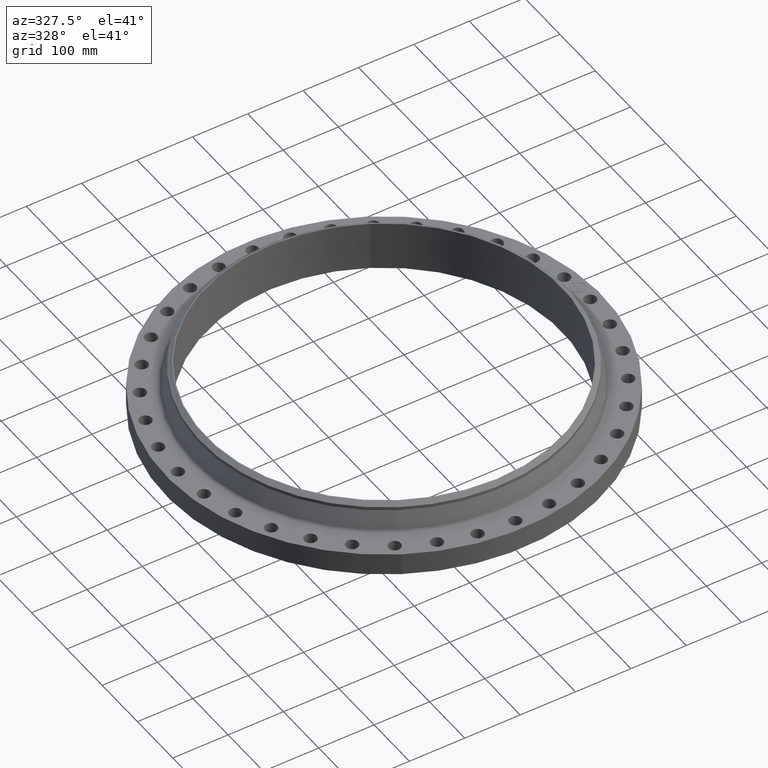
[diagram: clean part render]
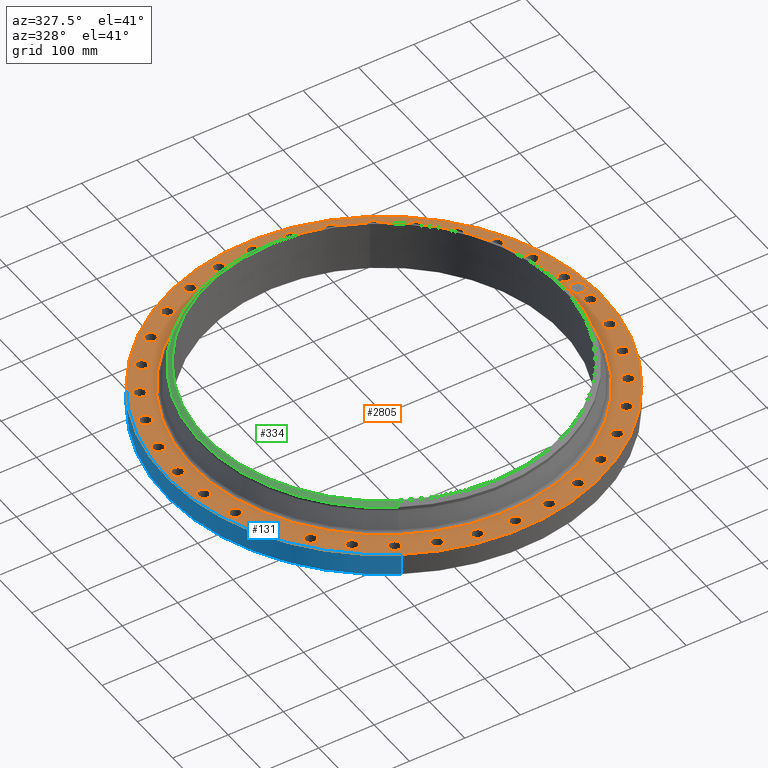
[diagram: same view with three faces highlighted in distinct colors, each labeled with its STEP entity id]
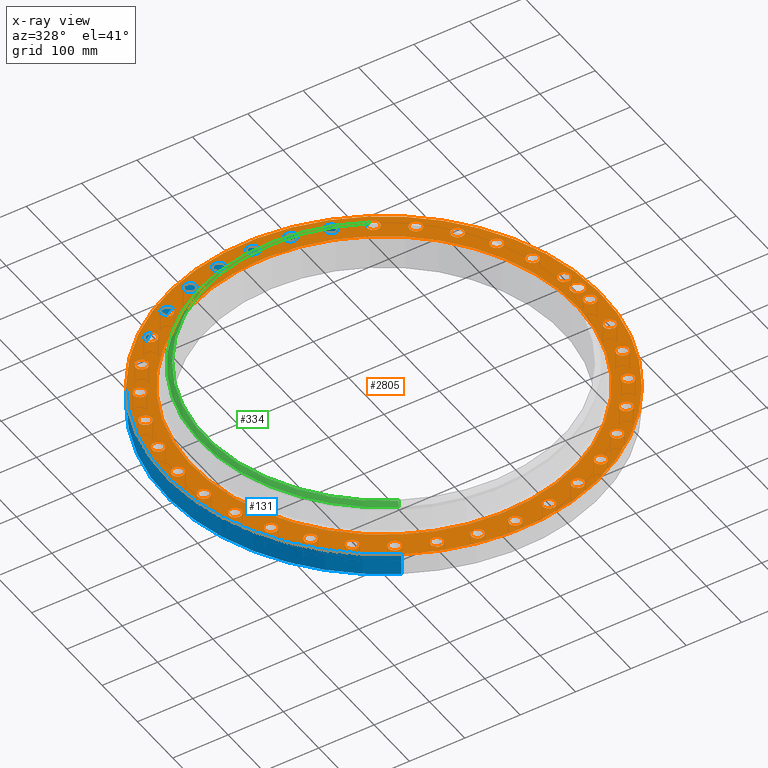
[diagram: x-ray of the same camera — body ghosted, the three highlighted faces saturated]
A machine part, auxiliary view with three faces highlighted in distinct colors.
The next image is the same camera in x-ray (body ghosted, the three faces saturated) — at least one of them is partly hidden behind the body in this view.
Their STEP definitions:

[orange] entity #2805 — the highlighted planar face has unit normal (0, 0, -1).
#65=AXIS2_PLACEMENT_3D('Circle Axis2P3D',#63,#64,$) ;
#82=AXIS2_PLACEMENT_3D('Circle Axis2P3D',#80,#81,$) ;
#115=AXIS2_PLACEMENT_3D('Circle Axis2P3D',#113,#114,$) ;
#139=AXIS2_PLACEMENT_3D('Circle Axis2P3D',#137,#138,$) ;
#156=AXIS2_PLACEMENT_3D('Circle Axis2P3D',#154,#155,$) ;
#191=AXIS2_PLACEMENT_3D('Circle Axis2P3D',#189,#190,$) ;
#1146=AXIS2_PLACEMENT_3D('Circle Axis2P3D',#1144,#1145,$) ;
#1158=AXIS2_PLACEMENT_3D('Circle Axis2P3D',#1156,#1157,$) ;
#1189=AXIS2_PLACEMENT_3D('Circle Axis2P3D',#1187,#1188,$) ;
#1201=AXIS2_PLACEMENT_3D('Circle Axis2P3D',#1199,#1200,$) ;
#1232=AXIS2_PLACEMENT_3D('Circle Axis2P3D',#1230,#1231,$) ;
#1244=AXIS2_PLACEMENT_3D('Circle Axis2P3D',#1242,#1243,$) ;
#1275=AXIS2_PLACEMENT_3D('Circle Axis2P3D',#1273,#1274,$) ;
#1287=AXIS2_PLACEMENT_3D('Circle Axis2P3D',#1285,#1286,$) ;
#1318=AXIS2_PLACEMENT_3D('Circle Axis2P3D',#1316,#1317,$) ;
#1330=AXIS2_PLACEMENT_3D('Circle Axis2P3D',#1328,#1329,$) ;
#1361=AXIS2_PLACEMENT_3D('Circle Axis2P3D',#1359,#1360,$) ;
#1373=AXIS2_PLACEMENT_3D('Circle Axis2P3D',#1371,#1372,$) ;
#1404=AXIS2_PLACEMENT_3D('Circle Axis2P3D',#1402,#1403,$) ;
#1416=AXIS2_PLACEMENT_3D('Circle Axis2P3D',#1414,#1415,$) ;
#1447=AXIS2_PLACEMENT_3D('Circle Axis2P3D',#1445,#1446,$) ;
#1459=AXIS2_PLACEMENT_3D('Circle Axis2P3D',#1457,#1458,$) ;
#1490=AXIS2_PLACEMENT_3D('Circle Axis2P3D',#1488,#1489,$) ;
#1502=AXIS2_PLACEMENT_3D('Circle Axis2P3D',#1500,#1501,$) ;
#1533=AXIS2_PLACEMENT_3D('Circle Axis2P3D',#1531,#1532,$) ;
#1545=AXIS2_PLACEMENT_3D('Circle Axis2P3D',#1543,#1544,$) ;
#1576=AXIS2_PLACEMENT_3D('Circle Axis2P3D',#1574,#1575,$) ;
#1588=AXIS2_PLACEMENT_3D('Circle Axis2P3D',#1586,#1587,$) ;
#1619=AXIS2_PLACEMENT_3D('Circle Axis2P3D',#1617,#1618,$) ;
#1631=AXIS2_PLACEMENT_3D('Circle Axis2P3D',#1629,#1630,$) ;
#1662=AXIS2_PLACEMENT_3D('Circle Axis2P3D',#1660,#1661,$) ;
#1674=AXIS2_PLACEMENT_3D('Circle Axis2P3D',#1672,#1673,$) ;
#1705=AXIS2_PLACEMENT_3D('Circle Axis2P3D',#1703,#1704,$) ;
#1717=AXIS2_PLACEMENT_3D('Circle Axis2P3D',#1715,#1716,$) ;
#1748=AXIS2_PLACEMENT_3D('Circle Axis2P3D',#1746,#1747,$) ;
#1760=AXIS2_PLACEMENT_3D('Circle Axis2P3D',#1758,#1759,$) ;
#1791=AXIS2_PLACEMENT_3D('Circle Axis2P3D',#1789,#1790,$) ;
#1803=AXIS2_PLACEMENT_3D('Circle Axis2P3D',#1801,#1802,$) ;
#1834=AXIS2_PLACEMENT_3D('Circle Axis2P3D',#1832,#1833,$) ;
#1846=AXIS2_PLACEMENT_3D('Circle Axis2P3D',#1844,#1845,$) ;
#1877=AXIS2_PLACEMENT_3D('Circle Axis2P3D',#1875,#1876,$) ;
#1889=AXIS2_PLACEMENT_3D('Circle Axis2P3D',#1887,#1888,$) ;
#1920=AXIS2_PLACEMENT_3D('Circle Axis2P3D',#1918,#1919,$) ;
#1932=AXIS2_PLACEMENT_3D('Circle Axis2P3D',#1930,#1931,$) ;
#1963=AXIS2_PLACEMENT_3D('Circle Axis2P3D',#1961,#1962,$) ;
#1975=AXIS2_PLACEMENT_3D('Circle Axis2P3D',#1973,#1974,$) ;
#2006=AXIS2_PLACEMENT_3D('Circle Axis2P3D',#2004,#2005,$) ;
#2018=AXIS2_PLACEMENT_3D('Circle Axis2P3D',#2016,#2017,$) ;
#2049=AXIS2_PLACEMENT_3D('Circle Axis2P3D',#2047,#2048,$) ;
#2061=AXIS2_PLACEMENT_3D('Circle Axis2P3D',#2059,#2060,$) ;
#2092=AXIS2_PLACEMENT_3D('Circle Axis2P3D',#2090,#2091,$) ;
#2104=AXIS2_PLACEMENT_3D('Circle Axis2P3D',#2102,#2103,$) ;
#2135=AXIS2_PLACEMENT_3D('Circle Axis2P3D',#2133,#2134,$) ;
#2147=AXIS2_PLACEMENT_3D('Circle Axis2P3D',#2145,#2146,$) ;
#2178=AXIS2_PLACEMENT_3D('Circle Axis2P3D',#2176,#2177,$) ;
#2190=AXIS2_PLACEMENT_3D('Circle Axis2P3D',#2188,#2189,$) ;
#2221=AXIS2_PLACEMENT_3D('Circle Axis2P3D',#2219,#2220,$) ;
#2233=AXIS2_PLACEMENT_3D('Circle Axis2P3D',#2231,#2232,$) ;
#2264=AXIS2_PLACEMENT_3D('Circle Axis2P3D',#2262,#2263,$) ;
#2276=AXIS2_PLACEMENT_3D('Circle Axis2P3D',#2274,#2275,$) ;
#2307=AXIS2_PLACEMENT_3D('Circle Axis2P3D',#2305,#2306,$) ;
#2319=AXIS2_PLACEMENT_3D('Circle Axis2P3D',#2317,#2318,$) ;
#2350=AXIS2_PLACEMENT_3D('Circle Axis2P3D',#2348,#2349,$) ;
#2362=AXIS2_PLACEMENT_3D('Circle Axis2P3D',#2360,#2361,$) ;
#2393=AXIS2_PLACEMENT_3D('Circle Axis2P3D',#2391,#2392,$) ;
#2405=AXIS2_PLACEMENT_3D('Circle Axis2P3D',#2403,#2404,$) ;
#2436=AXIS2_PLACEMENT_3D('Circle Axis2P3D',#2434,#2435,$) ;
#2448=AXIS2_PLACEMENT_3D('Circle Axis2P3D',#2446,#2447,$) ;
#2479=AXIS2_PLACEMENT_3D('Circle Axis2P3D',#2477,#2478,$) ;
#2491=AXIS2_PLACEMENT_3D('Circle Axis2P3D',#2489,#2490,$) ;
#2522=AXIS2_PLACEMENT_3D('Circle Axis2P3D',#2520,#2521,$) ;
#2534=AXIS2_PLACEMENT_3D('Circle Axis2P3D',#2532,#2533,$) ;
#2565=AXIS2_PLACEMENT_3D('Circle Axis2P3D',#2563,#2564,$) ;
#2577=AXIS2_PLACEMENT_3D('Circle Axis2P3D',#2575,#2576,$) ;
#2608=AXIS2_PLACEMENT_3D('Circle Axis2P3D',#2606,#2607,$) ;
#2620=AXIS2_PLACEMENT_3D('Circle Axis2P3D',#2618,#2619,$) ;
#2633=AXIS2_PLACEMENT_3D('Plane Axis2P3D',#2630,#2631,#2632) ;
#2789=AXIS2_PLACEMENT_3D('Circle Axis2P3D',#2787,#2788,$) ;
#2798=AXIS2_PLACEMENT_3D('Circle Axis2P3D',#2796,#2797,$) ;
#46=CARTESIAN_POINT('Vertex',(14.2688636728,0.210947236987,1.57000000001)) ;
#60=CARTESIAN_POINT('Vertex',(15.0411363273,-0.210947236987,1.57000000001)) ;
#63=CARTESIAN_POINT('Axis2P3D Location',(14.6550000001,0.,1.57000000001)) ;
#80=CARTESIAN_POINT('Axis2P3D Location',(14.6550000001,0.,1.57000000001)) ;
#110=CARTESIAN_POINT('Vertex',(-7.41671308224,-13.5762022325,1.57000000001)) ;
#113=CARTESIAN_POINT('Axis2P3D Location',(0.,0.,1.57000000001)) ;
#117=CARTESIAN_POINT('Vertex',(7.41671308224,13.5762022325,1.57000000001)) ;
#137=CARTESIAN_POINT('Axis2P3D Location',(0.,0.,1.57000000001)) ;
#154=CARTESIAN_POINT('Axis2P3D Location',(0.,0.,1.57000000001)) ;
#158=CARTESIAN_POINT('Vertex',(6.54571568688,11.9818521947,1.57000000001)) ;
#160=CARTESIAN_POINT('Vertex',(-6.54571568688,-11.9818521947,1.57000000001)) ;
#189=CARTESIAN_POINT('Axis2P3D Location',(0.,0.,1.57000000001)) ;
#1134=CARTESIAN_POINT('Vertex',(-14.088718175,2.2700196997,1.57000000001)) ;
#1141=CARTESIAN_POINT('Vertex',(-14.7759970659,2.81960838774,1.57000000001)) ;
#1144=CARTESIAN_POINT('Axis2P3D Location',(-14.4323576205,2.54481404372,1.57000000001)) ;
#1156=CARTESIAN_POINT('Axis2P3D Location',(-14.4323576205,2.54481404372,1.57000000001)) ;
#1177=CARTESIAN_POINT('Vertex',(13.4804941046,-4.6820132365,1.57000000001)) ;
#1184=CARTESIAN_POINT('Vertex',(14.0618966108,-5.34259716441,1.57000000001)) ;
#1187=CARTESIAN_POINT('Axis2P3D Location',(13.7711953577,-5.01230520046,1.57000000001)) ;
#1199=CARTESIAN_POINT('Axis2P3D Location',(13.7711953577,-5.01230520046,1.57000000001)) ;
#1220=CARTESIAN_POINT('Vertex',(-13.4804941046,4.6820132365,1.57000000001)) ;
#1227=CARTESIAN_POINT('Vertex',(-14.0618966108,5.34259716441,1.57000000001)) ;
#1230=CARTESIAN_POINT('Axis2P3D Location',(-13.7711953577,5.01230520046,1.57000000001)) ;
#1242=CARTESIAN_POINT('Axis2P3D Location',(-13.7711953577,5.01230520046,1.57000000001)) ;
#1263=CARTESIAN_POINT('Vertex',(12.4626720423,-6.95174617032,1.57000000001)) ;
#1270=CARTESIAN_POINT('Vertex',(12.9205325427,-7.70325382973,1.57000000001)) ;
#1273=CARTESIAN_POINT('Axis2P3D Location',(12.6916022925,-7.32750000003,1.57000000001)) ;
#1285=CARTESIAN_POINT('Axis2P3D Location',(12.6916022925,-7.32750000003,1.57000000001)) ;
#1306=CARTESIAN_POINT('Vertex',(-12.4626720423,6.95174617032,1.57000000001)) ;
#1313=CARTESIAN_POINT('Vertex',(-12.9205325427,7.70325382973,1.57000000001)) ;
#1316=CARTESIAN_POINT('Axis2P3D Location',(-12.6916022925,7.32750000003,1.57000000001)) ;
#1328=CARTESIAN_POINT('Axis2P3D Location',(-12.6916022925,7.32750000003,1.57000000001)) ;
#1349=CARTESIAN_POINT('Vertex',(11.0661779964,-9.01025381451,1.57000000001)) ;
#1356=CARTESIAN_POINT('Vertex',(11.3865846315,-9.82985102547,1.57000000001)) ;
#1359=CARTESIAN_POINT('Axis2P3D Location',(11.226381314,-9.42005241999,1.57000000001)) ;
#1371=CARTESIAN_POINT('Axis2P3D Location',(11.226381314,-9.42005241999,1.57000000001)) ;
#1392=CARTESIAN_POINT('Vertex',(-11.0661779964,9.01025381451,1.57000000001)) ;
#1399=CARTESIAN_POINT('Vertex',(-11.3865846315,9.82985102547,1.57000000001)) ;
#1402=CARTESIAN_POINT('Axis2P3D Location',(-11.226381314,9.42005241999,1.57000000001)) ;
#1414=CARTESIAN_POINT('Axis2P3D Location',(-11.226381314,9.42005241999,1.57000000001)) ;
#1435=CARTESIAN_POINT('Vertex',(9.33344373188,-10.794989456,1.57000000001)) ;
#1442=CARTESIAN_POINT('Vertex',(9.5066611081,-11.6577731719,1.57000000001)) ;
#1445=CARTESIAN_POINT('Axis2P3D Location',(9.42005241999,-11.226381314,1.57000000001)) ;
#1457=CARTESIAN_POINT('Axis2P3D Location',(9.42005241999,-11.226381314,1.57000000001)) ;
#1478=CARTESIAN_POINT('Vertex',(-9.33344373188,10.794989456,1.57000000001)) ;
#1485=CARTESIAN_POINT('Vertex',(-9.5066611081,11.6577731719,1.57000000001)) ;
#1488=CARTESIAN_POINT('Axis2P3D Location',(-9.42005241999,11.226381314,1.57000000001)) ;
#1500=CARTESIAN_POINT('Axis2P3D Location',(-9.42005241999,11.226381314,1.57000000001)) ;
#1521=CARTESIAN_POINT('Vertex',(7.3171175025,-12.2517248053,1.57000000001)) ;
#1528=CARTESIAN_POINT('Vertex',(7.33788249756,-13.1314797797,1.57000000001)) ;
#1531=CARTESIAN_POINT('Axis2P3D Location',(7.32750000003,-12.6916022925,1.57000000001)) ;
#1543=CARTESIAN_POINT('Axis2P3D Location',(7.32750000003,-12.6916022925,1.57000000001)) ;
#1564=CARTESIAN_POINT('Vertex',(-7.3171175025,12.2517248053,1.57000000001)) ;
#1571=CARTESIAN_POINT('Vertex',(-7.33788249756,13.1314797797,1.57000000001)) ;
#1574=CARTESIAN_POINT('Axis2P3D Location',(-7.32750000003,12.6916022925,1.57000000001)) ;
#1586=CARTESIAN_POINT('Axis2P3D Location',(-7.32750000003,12.6916022925,1.57000000001)) ;
#1607=CARTESIAN_POINT('Vertex',(5.07846436045,-13.3361976961,1.57000000001)) ;
#1614=CARTESIAN_POINT('Vertex',(4.94614604047,-14.2061930192,1.57000000001)) ;
#1617=CARTESIAN_POINT('Axis2P3D Location',(5.01230520046,-13.7711953577,1.57000000001)) ;
#1629=CARTESIAN_POINT('Axis2P3D Location',(5.01230520046,-13.7711953577,1.57000000001)) ;
#1650=CARTESIAN_POINT('Vertex',(-5.07846436045,13.3361976961,1.57000000001)) ;
#1657=CARTESIAN_POINT('Vertex',(-4.94614604047,14.2061930192,1.57000000001)) ;
#1660=CARTESIAN_POINT('Axis2P3D Location',(-5.01230520046,13.7711953577,1.57000000001)) ;
#1672=CARTESIAN_POINT('Axis2P3D Location',(-5.01230520046,13.7711953577,1.57000000001)) ;
#1693=CARTESIAN_POINT('Vertex',(2.68550464862,-14.0154569684,1.57000000001)) ;
#1700=CARTESIAN_POINT('Vertex',(2.40412343881,-14.8492582725,1.57000000001)) ;
#1703=CARTESIAN_POINT('Axis2P3D Location',(2.54481404372,-14.4323576205,1.57000000001)) ;
#1715=CARTESIAN_POINT('Axis2P3D Location',(2.54481404372,-14.4323576205,1.57000000001)) ;
#1736=CARTESIAN_POINT('Vertex',(-2.68550464862,14.0154569684,1.57000000001)) ;
#1743=CARTESIAN_POINT('Vertex',(-2.40412343881,14.8492582725,1.57000000001)) ;
#1746=CARTESIAN_POINT('Axis2P3D Location',(-2.54481404372,14.4323576205,1.57000000001)) ;
#1758=CARTESIAN_POINT('Axis2P3D Location',(-2.54481404372,14.4323576205,1.57000000001)) ;
#1779=CARTESIAN_POINT('Vertex',(0.210947236987,-14.2688636728,1.57000000001)) ;
#1786=CARTESIAN_POINT('Vertex',(-0.210947236987,-15.0411363273,1.57000000001)) ;
#1789=CARTESIAN_POINT('Axis2P3D Location',(-1.34056993433E-015,-14.6550000001,1.57000000001)) ;
#1801=CARTESIAN_POINT('Axis2P3D Location',(-1.34056993433E-015,-14.6550000001,1.57000000001)) ;
#1822=CARTESIAN_POINT('Vertex',(-0.210947236987,14.2688636728,1.57000000001)) ;
#1829=CARTESIAN_POINT('Vertex',(0.210947236987,15.0411363273,1.57000000001)) ;
#1832=CARTESIAN_POINT('Axis2P3D Location',(-2.69207982624E-015,14.6550000001,1.57000000001)) ;
#1844=CARTESIAN_POINT('Axis2P3D Location',(-2.69207982624E-015,14.6550000001,1.57000000001)) ;
#1865=CARTESIAN_POINT('Vertex',(-2.2700196997,-14.088718175,1.57000000001)) ;
#1872=CARTESIAN_POINT('Vertex',(-2.81960838774,-14.7759970659,1.57000000001)) ;
#1875=CARTESIAN_POINT('Axis2P3D Location',(-2.54481404372,-14.4323576205,1.57000000001)) ;
#1887=CARTESIAN_POINT('Axis2P3D Location',(-2.54481404372,-14.4323576205,1.57000000001)) ;
#1908=CARTESIAN_POINT('Vertex',(2.2700196997,14.088718175,1.57000000001)) ;
#1915=CARTESIAN_POINT('Vertex',(2.81960838774,14.7759970659,1.57000000001)) ;
#1918=CARTESIAN_POINT('Axis2P3D Location',(2.54481404372,14.4323576205,1.57000000001)) ;
#1930=CARTESIAN_POINT('Axis2P3D Location',(2.54481404372,14.4323576205,1.57000000001)) ;
#1951=CARTESIAN_POINT('Vertex',(-4.6820132365,-13.4804941046,1.57000000001)) ;
#1958=CARTESIAN_POINT('Vertex',(-5.34259716441,-14.0618966108,1.57000000001)) ;
#1961=CARTESIAN_POINT('Axis2P3D Location',(-5.01230520046,-13.7711953577,1.57000000001)) ;
#1973=CARTESIAN_POINT('Axis2P3D Location',(-5.01230520046,-13.7711953577,1.57000000001)) ;
#1994=CARTESIAN_POINT('Vertex',(4.6820132365,13.4804941046,1.57000000001)) ;
#2001=CARTESIAN_POINT('Vertex',(5.34259716441,14.0618966108,1.57000000001)) ;
#2004=CARTESIAN_POINT('Axis2P3D Location',(5.01230520046,13.7711953577,1.57000000001)) ;
#2016=CARTESIAN_POINT('Axis2P3D Location',(5.01230520046,13.7711953577,1.57000000001)) ;
#2037=CARTESIAN_POINT('Vertex',(-6.95174617032,-12.4626720423,1.57000000001)) ;
#2044=CARTESIAN_POINT('Vertex',(-7.70325382973,-12.9205325427,1.57000000001)) ;
#2047=CARTESIAN_POINT('Axis2P3D Location',(-7.32750000003,-12.6916022925,1.57000000001)) ;
#2059=CARTESIAN_POINT('Axis2P3D Location',(-7.32750000003,-12.6916022925,1.57000000001)) ;
#2080=CARTESIAN_POINT('Vertex',(6.95174617032,12.4626720423,1.57000000001)) ;
#2087=CARTESIAN_POINT('Vertex',(7.70325382973,12.9205325427,1.57000000001)) ;
#2090=CARTESIAN_POINT('Axis2P3D Location',(7.32750000003,12.6916022925,1.57000000001)) ;
#2102=CARTESIAN_POINT('Axis2P3D Location',(7.32750000003,12.6916022925,1.57000000001)) ;
#2123=CARTESIAN_POINT('Vertex',(-9.01025381451,-11.0661779964,1.57000000001)) ;
#2130=CARTESIAN_POINT('Vertex',(-9.82985102547,-11.3865846315,1.57000000001)) ;
#2133=CARTESIAN_POINT('Axis2P3D Location',(-9.42005241999,-11.226381314,1.57000000001)) ;
#2145=CARTESIAN_POINT('Axis2P3D Location',(-9.42005241999,-11.226381314,1.57000000001)) ;
#2166=CARTESIAN_POINT('Vertex',(9.01025381451,11.0661779964,1.57000000001)) ;
#2173=CARTESIAN_POINT('Vertex',(9.82985102547,11.3865846315,1.57000000001)) ;
#2176=CARTESIAN_POINT('Axis2P3D Location',(9.42005241999,11.226381314,1.57000000001)) ;
#2188=CARTESIAN_POINT('Axis2P3D Location',(9.42005241999,11.226381314,1.57000000001)) ;
#2209=CARTESIAN_POINT('Vertex',(-10.794989456,-9.33344373188,1.57000000001)) ;
#2216=CARTESIAN_POINT('Vertex',(-11.6577731719,-9.5066611081,1.57000000001)) ;
#2219=CARTESIAN_POINT('Axis2P3D Location',(-11.226381314,-9.42005241999,1.57000000001)) ;
#2231=CARTESIAN_POINT('Axis2P3D Location',(-11.226381314,-9.42005241999,1.57000000001)) ;
#2252=CARTESIAN_POINT('Vertex',(10.794989456,9.33344373188,1.57000000001)) ;
#2259=CARTESIAN_POINT('Vertex',(11.6577731719,9.5066611081,1.57000000001)) ;
#2262=CARTESIAN_POINT('Axis2P3D Location',(11.226381314,9.42005241999,1.57000000001)) ;
#2274=CARTESIAN_POINT('Axis2P3D Location',(11.226381314,9.42005241999,1.57000000001)) ;
#2295=CARTESIAN_POINT('Vertex',(-12.2517248053,-7.3171175025,1.57000000001)) ;
#2302=CARTESIAN_POINT('Vertex',(-13.1314797797,-7.33788249756,1.57000000001)) ;
#2305=CARTESIAN_POINT('Axis2P3D Location',(-12.6916022925,-7.32750000003,1.57000000001)) ;
#2317=CARTESIAN_POINT('Axis2P3D Location',(-12.6916022925,-7.32750000003,1.57000000001)) ;
#2338=CARTESIAN_POINT('Vertex',(12.2517248053,7.3171175025,1.57000000001)) ;
#2345=CARTESIAN_POINT('Vertex',(13.1314797797,7.33788249756,1.57000000001)) ;
#2348=CARTESIAN_POINT('Axis2P3D Location',(12.6916022925,7.32750000003,1.57000000001)) ;
#2360=CARTESIAN_POINT('Axis2P3D Location',(12.6916022925,7.32750000003,1.57000000001)) ;
#2381=CARTESIAN_POINT('Vertex',(-13.3361976961,-5.07846436045,1.57000000001)) ;
#2388=CARTESIAN_POINT('Vertex',(-14.2061930192,-4.94614604047,1.57000000001)) ;
#2391=CARTESIAN_POINT('Axis2P3D Location',(-13.7711953577,-5.01230520046,1.57000000001)) ;
#2403=CARTESIAN_POINT('Axis2P3D Location',(-13.7711953577,-5.01230520046,1.57000000001)) ;
#2424=CARTESIAN_POINT('Vertex',(13.3361976961,5.07846436045,1.57000000001)) ;
#2431=CARTESIAN_POINT('Vertex',(14.2061930192,4.94614604047,1.57000000001)) ;
#2434=CARTESIAN_POINT('Axis2P3D Location',(13.7711953577,5.01230520046,1.57000000001)) ;
#2446=CARTESIAN_POINT('Axis2P3D Location',(13.7711953577,5.01230520046,1.57000000001)) ;
#2467=CARTESIAN_POINT('Vertex',(-14.0154569684,-2.68550464862,1.57000000001)) ;
#2474=CARTESIAN_POINT('Vertex',(-14.8492582725,-2.40412343881,1.57000000001)) ;
#2477=CARTESIAN_POINT('Axis2P3D Location',(-14.4323576205,-2.54481404372,1.57000000001)) ;
#2489=CARTESIAN_POINT('Axis2P3D Location',(-14.4323576205,-2.54481404372,1.57000000001)) ;
#2510=CARTESIAN_POINT('Vertex',(14.0154569684,2.68550464862,1.57000000001)) ;
#2517=CARTESIAN_POINT('Vertex',(14.8492582725,2.40412343881,1.57000000001)) ;
#2520=CARTESIAN_POINT('Axis2P3D Location',(14.4323576205,2.54481404372,1.57000000001)) ;
#2532=CARTESIAN_POINT('Axis2P3D Location',(14.4323576205,2.54481404372,1.57000000001)) ;
#2553=CARTESIAN_POINT('Vertex',(-14.2688636728,-0.210947236987,1.57000000001)) ;
#2560=CARTESIAN_POINT('Vertex',(-15.0411363273,0.210947236987,1.57000000001)) ;
#2563=CARTESIAN_POINT('Axis2P3D Location',(-14.6550000001,-1.79471988416E-015,1.57000000001)) ;
#2575=CARTESIAN_POINT('Axis2P3D Location',(-14.6550000001,-1.79471988416E-015,1.57000000001)) ;
#2596=CARTESIAN_POINT('Vertex',(14.088718175,-2.2700196997,1.57000000001)) ;
#2603=CARTESIAN_POINT('Vertex',(14.7759970659,-2.81960838774,1.57000000001)) ;
#2606=CARTESIAN_POINT('Axis2P3D Location',(14.4323576205,-2.54481404372,1.57000000001)) ;
#2618=CARTESIAN_POINT('Axis2P3D Location',(14.4323576205,-2.54481404372,1.57000000001)) ;
#2630=CARTESIAN_POINT('Axis2P3D Location',(0.,15.4700000001,1.57000000001)) ;
#2787=CARTESIAN_POINT('Axis2P3D Location',(14.5992333006,1.27726740997,1.57000000001)) ;
#2791=CARTESIAN_POINT('Vertex',(14.5556555291,1.77536361738,1.57000000001)) ;
#2793=CARTESIAN_POINT('Vertex',(14.6428110721,0.779171202566,1.57000000001)) ;
#2796=CARTESIAN_POINT('Axis2P3D Location',(14.5992333006,1.27726740997,1.57000000001)) ;
#64=DIRECTION('Axis2P3D Direction',(0.,-0.,-0.0393700787402)) ;
#81=DIRECTION('Axis2P3D Direction',(0.,-0.,-0.0393700787402)) ;
#114=DIRECTION('Axis2P3D Direction',(0.,0.,-0.0393700787402)) ;
#138=DIRECTION('Axis2P3D Direction',(0.,0.,-0.0393700787402)) ;
#155=DIRECTION('Axis2P3D Direction',(0.,0.,-0.0393700787402)) ;
#190=DIRECTION('Axis2P3D Direction',(0.,0.,-0.0393700787402)) ;
#1145=DIRECTION('Axis2P3D Direction',(0.,0.,-0.0393700787402)) ;
#1157=DIRECTION('Axis2P3D Direction',(0.,0.,-0.0393700787402)) ;
#1188=DIRECTION('Axis2P3D Direction',(0.,-0.,-0.0393700787402)) ;
#1200=DIRECTION('Axis2P3D Direction',(0.,-0.,-0.0393700787402)) ;
#1231=DIRECTION('Axis2P3D Direction',(0.,0.,-0.0393700787402)) ;
#1243=DIRECTION('Axis2P3D Direction',(0.,0.,-0.0393700787402)) ;
#1274=DIRECTION('Axis2P3D Direction',(0.,-0.,-0.0393700787402)) ;
#1286=DIRECTION('Axis2P3D Direction',(0.,-0.,-0.0393700787402)) ;
#1317=DIRECTION('Axis2P3D Direction',(0.,0.,-0.0393700787402)) ;
#1329=DIRECTION('Axis2P3D Direction',(0.,0.,-0.0393700787402)) ;
#1360=DIRECTION('Axis2P3D Direction',(0.,-0.,-0.0393700787402)) ;
#1372=DIRECTION('Axis2P3D Direction',(0.,-0.,-0.0393700787402)) ;
#1403=DIRECTION('Axis2P3D Direction',(0.,0.,-0.0393700787402)) ;
#1415=DIRECTION('Axis2P3D Direction',(0.,0.,-0.0393700787402)) ;
#1446=DIRECTION('Axis2P3D Direction',(0.,-0.,-0.0393700787402)) ;
#1458=DIRECTION('Axis2P3D Direction',(0.,-0.,-0.0393700787402)) ;
#1489=DIRECTION('Axis2P3D Direction',(0.,0.,-0.0393700787402)) ;
#1501=DIRECTION('Axis2P3D Direction',(0.,0.,-0.0393700787402)) ;
#1532=DIRECTION('Axis2P3D Direction',(0.,-0.,-0.0393700787402)) ;
#1544=DIRECTION('Axis2P3D Direction',(0.,-0.,-0.0393700787402)) ;
#1575=DIRECTION('Axis2P3D Direction',(0.,0.,-0.0393700787402)) ;
#1587=DIRECTION('Axis2P3D Direction',(0.,0.,-0.0393700787402)) ;
#1618=DIRECTION('Axis2P3D Direction',(0.,-0.,-0.0393700787402)) ;
#1630=DIRECTION('Axis2P3D Direction',(0.,-0.,-0.0393700787402)) ;
#1661=DIRECTION('Axis2P3D Direction',(0.,0.,-0.0393700787402)) ;
#1673=DIRECTION('Axis2P3D Direction',(0.,0.,-0.0393700787402)) ;
#1704=DIRECTION('Axis2P3D Direction',(0.,-0.,-0.0393700787402)) ;
#1716=DIRECTION('Axis2P3D Direction',(0.,-0.,-0.0393700787402)) ;
#1747=DIRECTION('Axis2P3D Direction',(0.,0.,-0.0393700787402)) ;
#1759=DIRECTION('Axis2P3D Direction',(0.,0.,-0.0393700787402)) ;
#1790=DIRECTION('Axis2P3D Direction',(0.,-0.,-0.0393700787402)) ;
#1802=DIRECTION('Axis2P3D Direction',(0.,-0.,-0.0393700787402)) ;
#1833=DIRECTION('Axis2P3D Direction',(0.,0.,-0.0393700787402)) ;
#1845=DIRECTION('Axis2P3D Direction',(0.,0.,-0.0393700787402)) ;
#1876=DIRECTION('Axis2P3D Direction',(-0.,0.,-0.0393700787402)) ;
#1888=DIRECTION('Axis2P3D Direction',(-0.,0.,-0.0393700787402)) ;
#1919=DIRECTION('Axis2P3D Direction',(0.,0.,-0.0393700787402)) ;
#1931=DIRECTION('Axis2P3D Direction',(0.,0.,-0.0393700787402)) ;
#1962=DIRECTION('Axis2P3D Direction',(-0.,0.,-0.0393700787402)) ;
#1974=DIRECTION('Axis2P3D Direction',(-0.,0.,-0.0393700787402)) ;
#2005=DIRECTION('Axis2P3D Direction',(0.,0.,-0.0393700787402)) ;
#2017=DIRECTION('Axis2P3D Direction',(0.,0.,-0.0393700787402)) ;
#2048=DIRECTION('Axis2P3D Direction',(-0.,0.,-0.0393700787402)) ;
#2060=DIRECTION('Axis2P3D Direction',(-0.,0.,-0.0393700787402)) ;
#2091=DIRECTION('Axis2P3D Direction',(0.,0.,-0.0393700787402)) ;
#2103=DIRECTION('Axis2P3D Direction',(0.,0.,-0.0393700787402)) ;
#2134=DIRECTION('Axis2P3D Direction',(-0.,0.,-0.0393700787402)) ;
#2146=DIRECTION('Axis2P3D Direction',(-0.,0.,-0.0393700787402)) ;
#2177=DIRECTION('Axis2P3D Direction',(0.,0.,-0.0393700787402)) ;
#2189=DIRECTION('Axis2P3D Direction',(0.,0.,-0.0393700787402)) ;
#2220=DIRECTION('Axis2P3D Direction',(-0.,0.,-0.0393700787402)) ;
#2232=DIRECTION('Axis2P3D Direction',(-0.,0.,-0.0393700787402)) ;
#2263=DIRECTION('Axis2P3D Direction',(0.,0.,-0.0393700787402)) ;
#2275=DIRECTION('Axis2P3D Direction',(0.,0.,-0.0393700787402)) ;
#2306=DIRECTION('Axis2P3D Direction',(-0.,0.,-0.0393700787402)) ;
#2318=DIRECTION('Axis2P3D Direction',(-0.,0.,-0.0393700787402)) ;
#2349=DIRECTION('Axis2P3D Direction',(0.,0.,-0.0393700787402)) ;
#2361=DIRECTION('Axis2P3D Direction',(0.,0.,-0.0393700787402)) ;
#2392=DIRECTION('Axis2P3D Direction',(-0.,0.,-0.0393700787402)) ;
#2404=DIRECTION('Axis2P3D Direction',(-0.,0.,-0.0393700787402)) ;
#2435=DIRECTION('Axis2P3D Direction',(0.,0.,-0.0393700787402)) ;
#2447=DIRECTION('Axis2P3D Direction',(0.,0.,-0.0393700787402)) ;
#2478=DIRECTION('Axis2P3D Direction',(-0.,0.,-0.0393700787402)) ;
#2490=DIRECTION('Axis2P3D Direction',(-0.,0.,-0.0393700787402)) ;
#2521=DIRECTION('Axis2P3D Direction',(0.,0.,-0.0393700787402)) ;
#2533=DIRECTION('Axis2P3D Direction',(0.,0.,-0.0393700787402)) ;
#2564=DIRECTION('Axis2P3D Direction',(-0.,0.,-0.0393700787402)) ;
#2576=DIRECTION('Axis2P3D Direction',(-0.,0.,-0.0393700787402)) ;
#2607=DIRECTION('Axis2P3D Direction',(0.,-0.,-0.0393700787402)) ;
#2619=DIRECTION('Axis2P3D Direction',(0.,-0.,-0.0393700787402)) ;
#2631=DIRECTION('Axis2P3D Direction',(0.,0.,-0.0393700787402)) ;
#2632=DIRECTION('Axis2P3D XDirection',(0.0393700787402,0.,0.)) ;
#2788=DIRECTION('Axis2P3D Direction',(0.,0.,-0.0393700787402)) ;
#2797=DIRECTION('Axis2P3D Direction',(0.,0.,-0.0393700787402)) ;
#2636=ORIENTED_EDGE('',*,*,#141,.F.) ;
#2637=ORIENTED_EDGE('',*,*,#119,.F.) ;
#2640=ORIENTED_EDGE('',*,*,#67,.T.) ;
#2641=ORIENTED_EDGE('',*,*,#84,.T.) ;
#2644=ORIENTED_EDGE('',*,*,#193,.T.) ;
#2645=ORIENTED_EDGE('',*,*,#162,.T.) ;
#2648=ORIENTED_EDGE('',*,*,#2622,.T.) ;
#2649=ORIENTED_EDGE('',*,*,#2610,.T.) ;
#2652=ORIENTED_EDGE('',*,*,#1203,.T.) ;
#2653=ORIENTED_EDGE('',*,*,#1191,.T.) ;
#2656=ORIENTED_EDGE('',*,*,#1289,.T.) ;
#2657=ORIENTED_EDGE('',*,*,#1277,.T.) ;
#2660=ORIENTED_EDGE('',*,*,#1375,.T.) ;
#2661=ORIENTED_EDGE('',*,*,#1363,.T.) ;
#2664=ORIENTED_EDGE('',*,*,#1461,.T.) ;
#2665=ORIENTED_EDGE('',*,*,#1449,.T.) ;
#2668=ORIENTED_EDGE('',*,*,#1547,.T.) ;
#2669=ORIENTED_EDGE('',*,*,#1535,.T.) ;
#2672=ORIENTED_EDGE('',*,*,#1633,.T.) ;
#2673=ORIENTED_EDGE('',*,*,#1621,.T.) ;
#2676=ORIENTED_EDGE('',*,*,#1719,.T.) ;
#2677=ORIENTED_EDGE('',*,*,#1707,.T.) ;
#2680=ORIENTED_EDGE('',*,*,#1805,.T.) ;
#2681=ORIENTED_EDGE('',*,*,#1793,.T.) ;
#2684=ORIENTED_EDGE('',*,*,#1891,.T.) ;
#2685=ORIENTED_EDGE('',*,*,#1879,.T.) ;
#2688=ORIENTED_EDGE('',*,*,#1977,.T.) ;
#2689=ORIENTED_EDGE('',*,*,#1965,.T.) ;
#2692=ORIENTED_EDGE('',*,*,#2063,.T.) ;
#2693=ORIENTED_EDGE('',*,*,#2051,.T.) ;
#2696=ORIENTED_EDGE('',*,*,#2149,.T.) ;
#2697=ORIENTED_EDGE('',*,*,#2137,.T.) ;
#2700=ORIENTED_EDGE('',*,*,#2235,.T.) ;
#2701=ORIENTED_EDGE('',*,*,#2223,.T.) ;
#2704=ORIENTED_EDGE('',*,*,#2321,.T.) ;
#2705=ORIENTED_EDGE('',*,*,#2309,.T.) ;
#2708=ORIENTED_EDGE('',*,*,#2407,.T.) ;
#2709=ORIENTED_EDGE('',*,*,#2395,.T.) ;
#2712=ORIENTED_EDGE('',*,*,#2493,.T.) ;
#2713=ORIENTED_EDGE('',*,*,#2481,.T.) ;
#2716=ORIENTED_EDGE('',*,*,#2579,.T.) ;
#2717=ORIENTED_EDGE('',*,*,#2567,.T.) ;
#2720=ORIENTED_EDGE('',*,*,#1160,.T.) ;
#2721=ORIENTED_EDGE('',*,*,#1148,.T.) ;
#2724=ORIENTED_EDGE('',*,*,#1246,.T.) ;
#2725=ORIENTED_EDGE('',*,*,#1234,.T.) ;
#2728=ORIENTED_EDGE('',*,*,#1332,.T.) ;
#2729=ORIENTED_EDGE('',*,*,#1320,.T.) ;
#2732=ORIENTED_EDGE('',*,*,#1418,.T.) ;
#2733=ORIENTED_EDGE('',*,*,#1406,.T.) ;
#2736=ORIENTED_EDGE('',*,*,#1504,.T.) ;
#2737=ORIENTED_EDGE('',*,*,#1492,.T.) ;
#2740=ORIENTED_EDGE('',*,*,#1590,.T.) ;
#2741=ORIENTED_EDGE('',*,*,#1578,.T.) ;
#2744=ORIENTED_EDGE('',*,*,#1676,.T.) ;
#2745=ORIENTED_EDGE('',*,*,#1664,.T.) ;
#2748=ORIENTED_EDGE('',*,*,#1762,.T.) ;
#2749=ORIENTED_EDGE('',*,*,#1750,.T.) ;
#2752=ORIENTED_EDGE('',*,*,#1848,.T.) ;
#2753=ORIENTED_EDGE('',*,*,#1836,.T.) ;
#2756=ORIENTED_EDGE('',*,*,#1934,.T.) ;
#2757=ORIENTED_EDGE('',*,*,#1922,.T.) ;
#2760=ORIENTED_EDGE('',*,*,#2020,.T.) ;
#2761=ORIENTED_EDGE('',*,*,#2008,.T.) ;
#2764=ORIENTED_EDGE('',*,*,#2106,.T.) ;
#2765=ORIENTED_EDGE('',*,*,#2094,.T.) ;
#2768=ORIENTED_EDGE('',*,*,#2192,.T.) ;
#2769=ORIENTED_EDGE('',*,*,#2180,.T.) ;
#2772=ORIENTED_EDGE('',*,*,#2278,.T.) ;
#2773=ORIENTED_EDGE('',*,*,#2266,.T.) ;
#2776=ORIENTED_EDGE('',*,*,#2364,.T.) ;
#2777=ORIENTED_EDGE('',*,*,#2352,.T.) ;
#2780=ORIENTED_EDGE('',*,*,#2450,.T.) ;
#2781=ORIENTED_EDGE('',*,*,#2438,.T.) ;
#2784=ORIENTED_EDGE('',*,*,#2536,.T.) ;
#2785=ORIENTED_EDGE('',*,*,#2524,.T.) ;
#2802=ORIENTED_EDGE('',*,*,#2795,.T.) ;
#2803=ORIENTED_EDGE('',*,*,#2800,.T.) ;
#2642=FACE_BOUND('',#2639,.T.) ;
#2646=FACE_BOUND('',#2643,.T.) ;
#2650=FACE_BOUND('',#2647,.T.) ;
#2654=FACE_BOUND('',#2651,.T.) ;
#2658=FACE_BOUND('',#2655,.T.) ;
#2662=FACE_BOUND('',#2659,.T.) ;
#2666=FACE_BOUND('',#2663,.T.) ;
#2670=FACE_BOUND('',#2667,.T.) ;
#2674=FACE_BOUND('',#2671,.T.) ;
#2678=FACE_BOUND('',#2675,.T.) ;
#2682=FACE_BOUND('',#2679,.T.) ;
#2686=FACE_BOUND('',#2683,.T.) ;
#2690=FACE_BOUND('',#2687,.T.) ;
#2694=FACE_BOUND('',#2691,.T.) ;
#2698=FACE_BOUND('',#2695,.T.) ;
#2702=FACE_BOUND('',#2699,.T.) ;
#2706=FACE_BOUND('',#2703,.T.) ;
#2710=FACE_BOUND('',#2707,.T.) ;
#2714=FACE_BOUND('',#2711,.T.) ;
#2718=FACE_BOUND('',#2715,.T.) ;
#2722=FACE_BOUND('',#2719,.T.) ;
#2726=FACE_BOUND('',#2723,.T.) ;
#2730=FACE_BOUND('',#2727,.T.) ;
#2734=FACE_BOUND('',#2731,.T.) ;
#2738=FACE_BOUND('',#2735,.T.) ;
#2742=FACE_BOUND('',#2739,.T.) ;
#2746=FACE_BOUND('',#2743,.T.) ;
#2750=FACE_BOUND('',#2747,.T.) ;
#2754=FACE_BOUND('',#2751,.T.) ;
#2758=FACE_BOUND('',#2755,.T.) ;
#2762=FACE_BOUND('',#2759,.T.) ;
#2766=FACE_BOUND('',#2763,.T.) ;
#2770=FACE_BOUND('',#2767,.T.) ;
#2774=FACE_BOUND('',#2771,.T.) ;
#2778=FACE_BOUND('',#2775,.T.) ;
#2782=FACE_BOUND('',#2779,.T.) ;
#2786=FACE_BOUND('',#2783,.T.) ;
#2804=FACE_BOUND('',#2801,.T.) ;
#2805=ADVANCED_FACE('PartBody',(#2638,#2642,#2646,#2650,#2654,#2658,#2662,#2666,#2670,#2674,#2678,#2682,#2686,#2690,#2694,#2698,#2702,#2706,#2710,#2714,#2718,#2722,#2726,#2730,#2734,#2738,#2742,#2746,#2750,#2754,#2758,#2762,#2766,#2770,#2774,#2778,#2782,#2786,#2804),#2634,.F.) ;
#66=CIRCLE('generated circle',#65,0.440000000002) ;
#83=CIRCLE('generated circle',#82,0.440000000002) ;
#116=CIRCLE('generated circle',#115,15.4700000001) ;
#140=CIRCLE('generated circle',#139,15.4700000001) ;
#157=CIRCLE('generated circle',#156,13.6532478139) ;
#192=CIRCLE('generated circle',#191,13.6532478139) ;
#1147=CIRCLE('generated circle',#1146,0.440000000002) ;
#1159=CIRCLE('generated circle',#1158,0.440000000002) ;
#1190=CIRCLE('generated circle',#1189,0.440000000002) ;
#1202=CIRCLE('generated circle',#1201,0.440000000002) ;
#1233=CIRCLE('generated circle',#1232,0.440000000002) ;
#1245=CIRCLE('generated circle',#1244,0.440000000002) ;
#1276=CIRCLE('generated circle',#1275,0.440000000002) ;
#1288=CIRCLE('generated circle',#1287,0.440000000002) ;
#1319=CIRCLE('generated circle',#1318,0.440000000002) ;
#1331=CIRCLE('generated circle',#1330,0.440000000002) ;
#1362=CIRCLE('generated circle',#1361,0.440000000002) ;
#1374=CIRCLE('generated circle',#1373,0.440000000002) ;
#1405=CIRCLE('generated circle',#1404,0.440000000002) ;
#1417=CIRCLE('generated circle',#1416,0.440000000002) ;
#1448=CIRCLE('generated circle',#1447,0.440000000002) ;
#1460=CIRCLE('generated circle',#1459,0.440000000002) ;
#1491=CIRCLE('generated circle',#1490,0.440000000002) ;
#1503=CIRCLE('generated circle',#1502,0.440000000002) ;
#1534=CIRCLE('generated circle',#1533,0.440000000002) ;
#1546=CIRCLE('generated circle',#1545,0.440000000002) ;
#1577=CIRCLE('generated circle',#1576,0.440000000002) ;
#1589=CIRCLE('generated circle',#1588,0.440000000002) ;
#1620=CIRCLE('generated circle',#1619,0.440000000002) ;
#1632=CIRCLE('generated circle',#1631,0.440000000002) ;
#1663=CIRCLE('generated circle',#1662,0.440000000002) ;
#1675=CIRCLE('generated circle',#1674,0.440000000002) ;
#1706=CIRCLE('generated circle',#1705,0.440000000002) ;
#1718=CIRCLE('generated circle',#1717,0.440000000002) ;
#1749=CIRCLE('generated circle',#1748,0.440000000002) ;
#1761=CIRCLE('generated circle',#1760,0.440000000002) ;
#1792=CIRCLE('generated circle',#1791,0.440000000002) ;
#1804=CIRCLE('generated circle',#1803,0.440000000002) ;
#1835=CIRCLE('generated circle',#1834,0.440000000002) ;
#1847=CIRCLE('generated circle',#1846,0.440000000002) ;
#1878=CIRCLE('generated circle',#1877,0.440000000002) ;
#1890=CIRCLE('generated circle',#1889,0.440000000002) ;
#1921=CIRCLE('generated circle',#1920,0.440000000002) ;
#1933=CIRCLE('generated circle',#1932,0.440000000002) ;
#1964=CIRCLE('generated circle',#1963,0.440000000002) ;
#1976=CIRCLE('generated circle',#1975,0.440000000002) ;
#2007=CIRCLE('generated circle',#2006,0.440000000002) ;
#2019=CIRCLE('generated circle',#2018,0.440000000002) ;
#2050=CIRCLE('generated circle',#2049,0.440000000002) ;
#2062=CIRCLE('generated circle',#2061,0.440000000002) ;
#2093=CIRCLE('generated circle',#2092,0.440000000002) ;
#2105=CIRCLE('generated circle',#2104,0.440000000002) ;
#2136=CIRCLE('generated circle',#2135,0.440000000002) ;
#2148=CIRCLE('generated circle',#2147,0.440000000002) ;
#2179=CIRCLE('generated circle',#2178,0.440000000002) ;
#2191=CIRCLE('generated circle',#2190,0.440000000002) ;
#2222=CIRCLE('generated circle',#2221,0.440000000002) ;
#2234=CIRCLE('generated circle',#2233,0.440000000002) ;
#2265=CIRCLE('generated circle',#2264,0.440000000002) ;
#2277=CIRCLE('generated circle',#2276,0.440000000002) ;
#2308=CIRCLE('generated circle',#2307,0.440000000002) ;
#2320=CIRCLE('generated circle',#2319,0.440000000002) ;
#2351=CIRCLE('generated circle',#2350,0.440000000002) ;
#2363=CIRCLE('generated circle',#2362,0.440000000002) ;
#2394=CIRCLE('generated circle',#2393,0.440000000002) ;
#2406=CIRCLE('generated circle',#2405,0.440000000002) ;
#2437=CIRCLE('generated circle',#2436,0.440000000002) ;
#2449=CIRCLE('generated circle',#2448,0.440000000002) ;
#2480=CIRCLE('generated circle',#2479,0.440000000002) ;
#2492=CIRCLE('generated circle',#2491,0.440000000002) ;
#2523=CIRCLE('generated circle',#2522,0.440000000002) ;
#2535=CIRCLE('generated circle',#2534,0.440000000002) ;
#2566=CIRCLE('generated circle',#2565,0.440000000002) ;
#2578=CIRCLE('generated circle',#2577,0.440000000002) ;
#2609=CIRCLE('generated circle',#2608,0.440000000002) ;
#2621=CIRCLE('generated circle',#2620,0.440000000002) ;
#2790=CIRCLE('generated circle',#2789,0.499998853999) ;
#2799=CIRCLE('generated circle',#2798,0.499998853999) ;
#67=EDGE_CURVE('',#47,#61,#66,.T.) ;
#84=EDGE_CURVE('',#61,#47,#83,.T.) ;
#119=EDGE_CURVE('',#111,#118,#116,.T.) ;
#141=EDGE_CURVE('',#118,#111,#140,.T.) ;
#162=EDGE_CURVE('',#159,#161,#157,.T.) ;
#193=EDGE_CURVE('',#161,#159,#192,.T.) ;
#1148=EDGE_CURVE('',#1135,#1142,#1147,.T.) ;
#1160=EDGE_CURVE('',#1142,#1135,#1159,.T.) ;
#1191=EDGE_CURVE('',#1178,#1185,#1190,.T.) ;
#1203=EDGE_CURVE('',#1185,#1178,#1202,.T.) ;
#1234=EDGE_CURVE('',#1221,#1228,#1233,.T.) ;
#1246=EDGE_CURVE('',#1228,#1221,#1245,.T.) ;
#1277=EDGE_CURVE('',#1264,#1271,#1276,.T.) ;
#1289=EDGE_CURVE('',#1271,#1264,#1288,.T.) ;
#1320=EDGE_CURVE('',#1307,#1314,#1319,.T.) ;
#1332=EDGE_CURVE('',#1314,#1307,#1331,.T.) ;
#1363=EDGE_CURVE('',#1350,#1357,#1362,.T.) ;
#1375=EDGE_CURVE('',#1357,#1350,#1374,.T.) ;
#1406=EDGE_CURVE('',#1393,#1400,#1405,.T.) ;
#1418=EDGE_CURVE('',#1400,#1393,#1417,.T.) ;
#1449=EDGE_CURVE('',#1436,#1443,#1448,.T.) ;
#1461=EDGE_CURVE('',#1443,#1436,#1460,.T.) ;
#1492=EDGE_CURVE('',#1479,#1486,#1491,.T.) ;
#1504=EDGE_CURVE('',#1486,#1479,#1503,.T.) ;
#1535=EDGE_CURVE('',#1522,#1529,#1534,.T.) ;
#1547=EDGE_CURVE('',#1529,#1522,#1546,.T.) ;
#1578=EDGE_CURVE('',#1565,#1572,#1577,.T.) ;
#1590=EDGE_CURVE('',#1572,#1565,#1589,.T.) ;
#1621=EDGE_CURVE('',#1608,#1615,#1620,.T.) ;
#1633=EDGE_CURVE('',#1615,#1608,#1632,.T.) ;
#1664=EDGE_CURVE('',#1651,#1658,#1663,.T.) ;
#1676=EDGE_CURVE('',#1658,#1651,#1675,.T.) ;
#1707=EDGE_CURVE('',#1694,#1701,#1706,.T.) ;
#1719=EDGE_CURVE('',#1701,#1694,#1718,.T.) ;
#1750=EDGE_CURVE('',#1737,#1744,#1749,.T.) ;
#1762=EDGE_CURVE('',#1744,#1737,#1761,.T.) ;
#1793=EDGE_CURVE('',#1780,#1787,#1792,.T.) ;
#1805=EDGE_CURVE('',#1787,#1780,#1804,.T.) ;
#1836=EDGE_CURVE('',#1823,#1830,#1835,.T.) ;
#1848=EDGE_CURVE('',#1830,#1823,#1847,.T.) ;
#1879=EDGE_CURVE('',#1866,#1873,#1878,.T.) ;
#1891=EDGE_CURVE('',#1873,#1866,#1890,.T.) ;
#1922=EDGE_CURVE('',#1909,#1916,#1921,.T.) ;
#1934=EDGE_CURVE('',#1916,#1909,#1933,.T.) ;
#1965=EDGE_CURVE('',#1952,#1959,#1964,.T.) ;
#1977=EDGE_CURVE('',#1959,#1952,#1976,.T.) ;
#2008=EDGE_CURVE('',#1995,#2002,#2007,.T.) ;
#2020=EDGE_CURVE('',#2002,#1995,#2019,.T.) ;
#2051=EDGE_CURVE('',#2038,#2045,#2050,.T.) ;
#2063=EDGE_CURVE('',#2045,#2038,#2062,.T.) ;
#2094=EDGE_CURVE('',#2081,#2088,#2093,.T.) ;
#2106=EDGE_CURVE('',#2088,#2081,#2105,.T.) ;
#2137=EDGE_CURVE('',#2124,#2131,#2136,.T.) ;
#2149=EDGE_CURVE('',#2131,#2124,#2148,.T.) ;
#2180=EDGE_CURVE('',#2167,#2174,#2179,.T.) ;
#2192=EDGE_CURVE('',#2174,#2167,#2191,.T.) ;
#2223=EDGE_CURVE('',#2210,#2217,#2222,.T.) ;
#2235=EDGE_CURVE('',#2217,#2210,#2234,.T.) ;
#2266=EDGE_CURVE('',#2253,#2260,#2265,.T.) ;
#2278=EDGE_CURVE('',#2260,#2253,#2277,.T.) ;
#2309=EDGE_CURVE('',#2296,#2303,#2308,.T.) ;
#2321=EDGE_CURVE('',#2303,#2296,#2320,.T.) ;
#2352=EDGE_CURVE('',#2339,#2346,#2351,.T.) ;
#2364=EDGE_CURVE('',#2346,#2339,#2363,.T.) ;
#2395=EDGE_CURVE('',#2382,#2389,#2394,.T.) ;
#2407=EDGE_CURVE('',#2389,#2382,#2406,.T.) ;
#2438=EDGE_CURVE('',#2425,#2432,#2437,.T.) ;
#2450=EDGE_CURVE('',#2432,#2425,#2449,.T.) ;
#2481=EDGE_CURVE('',#2468,#2475,#2480,.T.) ;
#2493=EDGE_CURVE('',#2475,#2468,#2492,.T.) ;
#2524=EDGE_CURVE('',#2511,#2518,#2523,.T.) ;
#2536=EDGE_CURVE('',#2518,#2511,#2535,.T.) ;
#2567=EDGE_CURVE('',#2554,#2561,#2566,.T.) ;
#2579=EDGE_CURVE('',#2561,#2554,#2578,.T.) ;
#2610=EDGE_CURVE('',#2597,#2604,#2609,.T.) ;
#2622=EDGE_CURVE('',#2604,#2597,#2621,.T.) ;
#2795=EDGE_CURVE('',#2792,#2794,#2790,.T.) ;
#2800=EDGE_CURVE('',#2794,#2792,#2799,.T.) ;
#2635=EDGE_LOOP('',(#2636,#2637)) ;
#2639=EDGE_LOOP('',(#2640,#2641)) ;
#2643=EDGE_LOOP('',(#2644,#2645)) ;
#2647=EDGE_LOOP('',(#2648,#2649)) ;
#2651=EDGE_LOOP('',(#2652,#2653)) ;
#2655=EDGE_LOOP('',(#2656,#2657)) ;
#2659=EDGE_LOOP('',(#2660,#2661)) ;
#2663=EDGE_LOOP('',(#2664,#2665)) ;
#2667=EDGE_LOOP('',(#2668,#2669)) ;
#2671=EDGE_LOOP('',(#2672,#2673)) ;
#2675=EDGE_LOOP('',(#2676,#2677)) ;
#2679=EDGE_LOOP('',(#2680,#2681)) ;
#2683=EDGE_LOOP('',(#2684,#2685)) ;
#2687=EDGE_LOOP('',(#2688,#2689)) ;
#2691=EDGE_LOOP('',(#2692,#2693)) ;
#2695=EDGE_LOOP('',(#2696,#2697)) ;
#2699=EDGE_LOOP('',(#2700,#2701)) ;
#2703=EDGE_LOOP('',(#2704,#2705)) ;
#2707=EDGE_LOOP('',(#2708,#2709)) ;
#2711=EDGE_LOOP('',(#2712,#2713)) ;
#2715=EDGE_LOOP('',(#2716,#2717)) ;
#2719=EDGE_LOOP('',(#2720,#2721)) ;
#2723=EDGE_LOOP('',(#2724,#2725)) ;
#2727=EDGE_LOOP('',(#2728,#2729)) ;
#2731=EDGE_LOOP('',(#2732,#2733)) ;
#2735=EDGE_LOOP('',(#2736,#2737)) ;
#2739=EDGE_LOOP('',(#2740,#2741)) ;
#2743=EDGE_LOOP('',(#2744,#2745)) ;
#2747=EDGE_LOOP('',(#2748,#2749)) ;
#2751=EDGE_LOOP('',(#2752,#2753)) ;
#2755=EDGE_LOOP('',(#2756,#2757)) ;
#2759=EDGE_LOOP('',(#2760,#2761)) ;
#2763=EDGE_LOOP('',(#2764,#2765)) ;
#2767=EDGE_LOOP('',(#2768,#2769)) ;
#2771=EDGE_LOOP('',(#2772,#2773)) ;
#2775=EDGE_LOOP('',(#2776,#2777)) ;
#2779=EDGE_LOOP('',(#2780,#2781)) ;
#2783=EDGE_LOOP('',(#2784,#2785)) ;
#2801=EDGE_LOOP('',(#2802,#2803)) ;
#2638=FACE_OUTER_BOUND('',#2635,.T.) ;
#2634=PLANE('',#2633) ;
#47=VERTEX_POINT('',#46) ;
#61=VERTEX_POINT('',#60) ;
#111=VERTEX_POINT('',#110) ;
#118=VERTEX_POINT('',#117) ;
#159=VERTEX_POINT('',#158) ;
#161=VERTEX_POINT('',#160) ;
#1135=VERTEX_POINT('',#1134) ;
#1142=VERTEX_POINT('',#1141) ;
#1178=VERTEX_POINT('',#1177) ;
#1185=VERTEX_POINT('',#1184) ;
#1221=VERTEX_POINT('',#1220) ;
#1228=VERTEX_POINT('',#1227) ;
#1264=VERTEX_POINT('',#1263) ;
#1271=VERTEX_POINT('',#1270) ;
#1307=VERTEX_POINT('',#1306) ;
#1314=VERTEX_POINT('',#1313) ;
#1350=VERTEX_POINT('',#1349) ;
#1357=VERTEX_POINT('',#1356) ;
#1393=VERTEX_POINT('',#1392) ;
#1400=VERTEX_POINT('',#1399) ;
#1436=VERTEX_POINT('',#1435) ;
#1443=VERTEX_POINT('',#1442) ;
#1479=VERTEX_POINT('',#1478) ;
#1486=VERTEX_POINT('',#1485) ;
#1522=VERTEX_POINT('',#1521) ;
#1529=VERTEX_POINT('',#1528) ;
#1565=VERTEX_POINT('',#1564) ;
#1572=VERTEX_POINT('',#1571) ;
#1608=VERTEX_POINT('',#1607) ;
#1615=VERTEX_POINT('',#1614) ;
#1651=VERTEX_POINT('',#1650) ;
#1658=VERTEX_POINT('',#1657) ;
#1694=VERTEX_POINT('',#1693) ;
#1701=VERTEX_POINT('',#1700) ;
#1737=VERTEX_POINT('',#1736) ;
#1744=VERTEX_POINT('',#1743) ;
#1780=VERTEX_POINT('',#1779) ;
#1787=VERTEX_POINT('',#1786) ;
#1823=VERTEX_POINT('',#1822) ;
#1830=VERTEX_POINT('',#1829) ;
#1866=VERTEX_POINT('',#1865) ;
#1873=VERTEX_POINT('',#1872) ;
#1909=VERTEX_POINT('',#1908) ;
#1916=VERTEX_POINT('',#1915) ;
#1952=VERTEX_POINT('',#1951) ;
#1959=VERTEX_POINT('',#1958) ;
#1995=VERTEX_POINT('',#1994) ;
#2002=VERTEX_POINT('',#2001) ;
#2038=VERTEX_POINT('',#2037) ;
#2045=VERTEX_POINT('',#2044) ;
#2081=VERTEX_POINT('',#2080) ;
#2088=VERTEX_POINT('',#2087) ;
#2124=VERTEX_POINT('',#2123) ;
#2131=VERTEX_POINT('',#2130) ;
#2167=VERTEX_POINT('',#2166) ;
#2174=VERTEX_POINT('',#2173) ;
#2210=VERTEX_POINT('',#2209) ;
#2217=VERTEX_POINT('',#2216) ;
#2253=VERTEX_POINT('',#2252) ;
#2260=VERTEX_POINT('',#2259) ;
#2296=VERTEX_POINT('',#2295) ;
#2303=VERTEX_POINT('',#2302) ;
#2339=VERTEX_POINT('',#2338) ;
#2346=VERTEX_POINT('',#2345) ;
#2382=VERTEX_POINT('',#2381) ;
#2389=VERTEX_POINT('',#2388) ;
#2425=VERTEX_POINT('',#2424) ;
#2432=VERTEX_POINT('',#2431) ;
#2468=VERTEX_POINT('',#2467) ;
#2475=VERTEX_POINT('',#2474) ;
#2511=VERTEX_POINT('',#2510) ;
#2518=VERTEX_POINT('',#2517) ;
#2554=VERTEX_POINT('',#2553) ;
#2561=VERTEX_POINT('',#2560) ;
#2597=VERTEX_POINT('',#2596) ;
#2604=VERTEX_POINT('',#2603) ;
#2792=VERTEX_POINT('',#2791) ;
#2794=VERTEX_POINT('',#2793) ;

[blue] entity #131 — the highlighted cylindrical surface (partial cylindrical patch) has radius 392.938 mm, axis along (0, 0, -1).
#95=AXIS2_PLACEMENT_3D('Cylinder Axis2P3D',#92,#93,#94) ;
#99=AXIS2_PLACEMENT_3D('Circle Axis2P3D',#97,#98,$) ;
#115=AXIS2_PLACEMENT_3D('Circle Axis2P3D',#113,#114,$) ;
#92=CARTESIAN_POINT('Axis2P3D Location',(0.,0.,1.73850000001)) ;
#97=CARTESIAN_POINT('Axis2P3D Location',(0.,0.,1.67844740731E-015)) ;
#101=CARTESIAN_POINT('Vertex',(-7.41671308224,-13.5762022325,1.67844740731E-015)) ;
#103=CARTESIAN_POINT('Vertex',(7.41671308224,13.5762022325,1.67844740731E-015)) ;
#106=CARTESIAN_POINT('Line Origine',(-7.41671308224,-13.5762022325,0.785000000003)) ;
#110=CARTESIAN_POINT('Vertex',(-7.41671308224,-13.5762022325,1.57000000001)) ;
#113=CARTESIAN_POINT('Axis2P3D Location',(0.,0.,1.57000000001)) ;
#117=CARTESIAN_POINT('Vertex',(7.41671308224,13.5762022325,1.57000000001)) ;
#120=CARTESIAN_POINT('Line Origine',(7.41671308224,13.5762022325,0.785000000003)) ;
#93=DIRECTION('Axis2P3D Direction',(0.,0.,-0.0393700787402)) ;
#94=DIRECTION('Axis2P3D XDirection',(0.0188750212049,0.0345504945626,0.)) ;
#98=DIRECTION('Axis2P3D Direction',(0.,0.,-0.0393700787402)) ;
#107=DIRECTION('Vector Direction',(0.,0.,-0.0393700787402)) ;
#114=DIRECTION('Axis2P3D Direction',(0.,0.,-0.0393700787402)) ;
#121=DIRECTION('Vector Direction',(0.,0.,-0.0393700787402)) ;
#108=VECTOR('Line Direction',#107,0.0393700787402) ;
#122=VECTOR('Line Direction',#121,0.0393700787402) ;
#126=ORIENTED_EDGE('',*,*,#105,.F.) ;
#127=ORIENTED_EDGE('',*,*,#112,.T.) ;
#128=ORIENTED_EDGE('',*,*,#119,.T.) ;
#129=ORIENTED_EDGE('',*,*,#124,.F.) ;
#131=ADVANCED_FACE('PartBody',(#130),#96,.T.) ;
#100=CIRCLE('generated circle',#99,15.4700000001) ;
#116=CIRCLE('generated circle',#115,15.4700000001) ;
#96=CYLINDRICAL_SURFACE('generated cylinder',#95,15.4700000001) ;
#105=EDGE_CURVE('',#102,#104,#100,.T.) ;
#112=EDGE_CURVE('',#102,#111,#109,.F.) ;
#119=EDGE_CURVE('',#111,#118,#116,.T.) ;
#124=EDGE_CURVE('',#104,#118,#123,.F.) ;
#125=EDGE_LOOP('',(#126,#127,#128,#129)) ;
#130=FACE_OUTER_BOUND('',#125,.T.) ;
#109=LINE('Line',#106,#108) ;
#123=LINE('Line',#120,#122) ;
#102=VERTEX_POINT('',#101) ;
#104=VERTEX_POINT('',#103) ;
#111=VERTEX_POINT('',#110) ;
#118=VERTEX_POINT('',#117) ;

[green] entity #334 — the highlighted conical surface has half-angle 52.5 deg.
#282=AXIS2_PLACEMENT_3D('Circle Axis2P3D',#280,#281,$) ;
#295=AXIS2_PLACEMENT_3D('Cone Axis2P3D',#292,#293,#294) ;
#325=AXIS2_PLACEMENT_3D('Circle Axis2P3D',#323,#324,$) ;
#258=CARTESIAN_POINT('Vertex',(-6.24691476804,-11.4349007815,3.20021031627)) ;
#265=CARTESIAN_POINT('Vertex',(6.24691476804,11.4349007815,3.20021031627)) ;
#280=CARTESIAN_POINT('Axis2P3D Location',(0.,0.,3.20021031627)) ;
#292=CARTESIAN_POINT('Axis2P3D Location',(0.,0.,3.44000000001)) ;
#297=CARTESIAN_POINT('Line Origine',(6.17200452763,11.2977785062,3.32010515814)) ;
#301=CARTESIAN_POINT('Vertex',(6.09709428722,11.1606562309,3.44000000001)) ;
#308=CARTESIAN_POINT('Vertex',(-6.09709428722,-11.1606562309,3.44000000001)) ;
#311=CARTESIAN_POINT('Line Origine',(-6.17200452763,-11.2977785062,3.32010515814)) ;
#323=CARTESIAN_POINT('Axis2P3D Location',(0.,0.,3.44000000001)) ;
#281=DIRECTION('Axis2P3D Direction',(0.,0.,-0.0393700787402)) ;
#293=DIRECTION('Axis2P3D Direction',(-0.,-0.,-0.0393700787402)) ;
#294=DIRECTION('Axis2P3D XDirection',(-0.0188750212049,-0.0345504945626,0.)) ;
#298=DIRECTION('Vector Direction',(0.014974561121,0.02741075027,-0.023966985394)) ;
#312=DIRECTION('Vector Direction',(-0.014974561121,-0.02741075027,-0.023966985394)) ;
#324=DIRECTION('Axis2P3D Direction',(0.,-0.,-0.0393700787402)) ;
#299=VECTOR('Line Direction',#298,0.0393700787402) ;
#313=VECTOR('Line Direction',#312,0.0393700787402) ;
#329=ORIENTED_EDGE('',*,*,#315,.F.) ;
#330=ORIENTED_EDGE('',*,*,#327,.T.) ;
#331=ORIENTED_EDGE('',*,*,#303,.T.) ;
#332=ORIENTED_EDGE('',*,*,#284,.F.) ;
#334=ADVANCED_FACE('PartBody',(#333),#296,.T.) ;
#283=CIRCLE('generated circle',#282,13.0300000001) ;
#326=CIRCLE('generated circle',#325,12.7175000001) ;
#296=CONICAL_SURFACE('Cone',#295,12.7175000001,0.916297857297) ;
#284=EDGE_CURVE('',#259,#266,#283,.T.) ;
#303=EDGE_CURVE('',#302,#266,#300,.T.) ;
#315=EDGE_CURVE('',#309,#259,#314,.T.) ;
#327=EDGE_CURVE('',#309,#302,#326,.T.) ;
#328=EDGE_LOOP('',(#329,#330,#331,#332)) ;
#333=FACE_OUTER_BOUND('',#328,.T.) ;
#300=LINE('Line',#297,#299) ;
#314=LINE('Line',#311,#313) ;
#259=VERTEX_POINT('',#258) ;
#266=VERTEX_POINT('',#265) ;
#302=VERTEX_POINT('',#301) ;
#309=VERTEX_POINT('',#308) ;